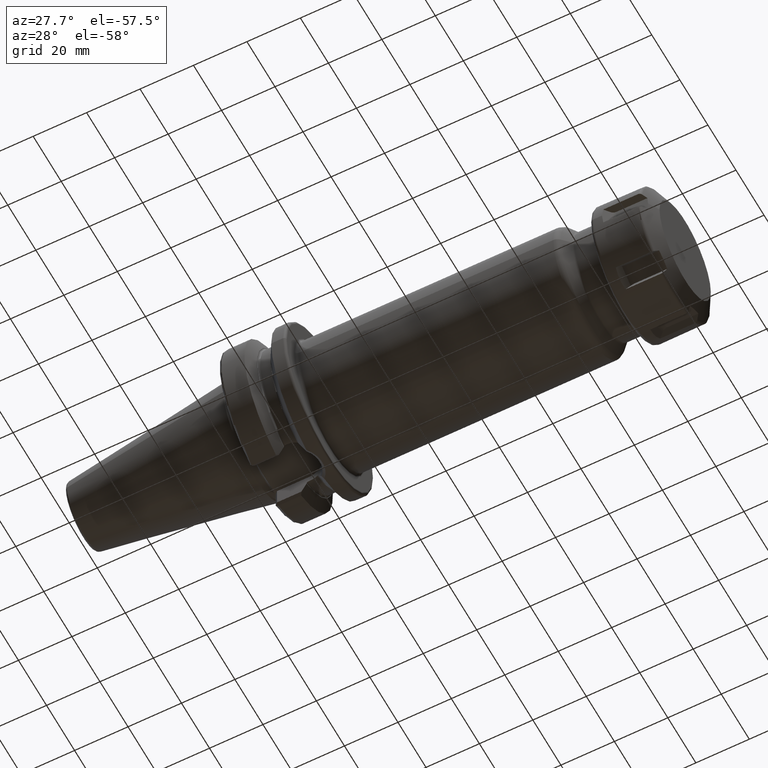
[diagram: clean part render]
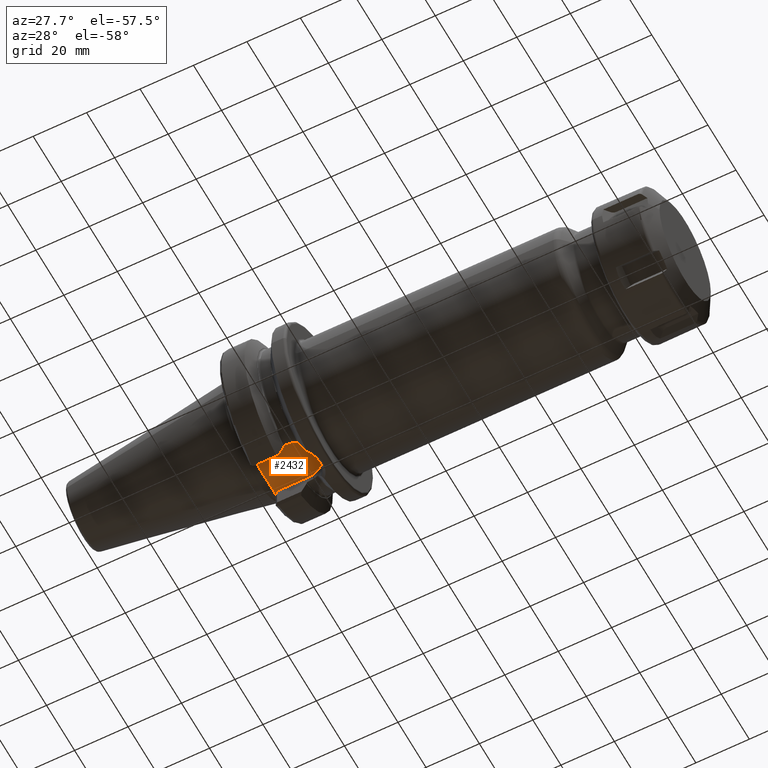
[diagram: same view with one face highlighted and labeled with its STEP entity id]
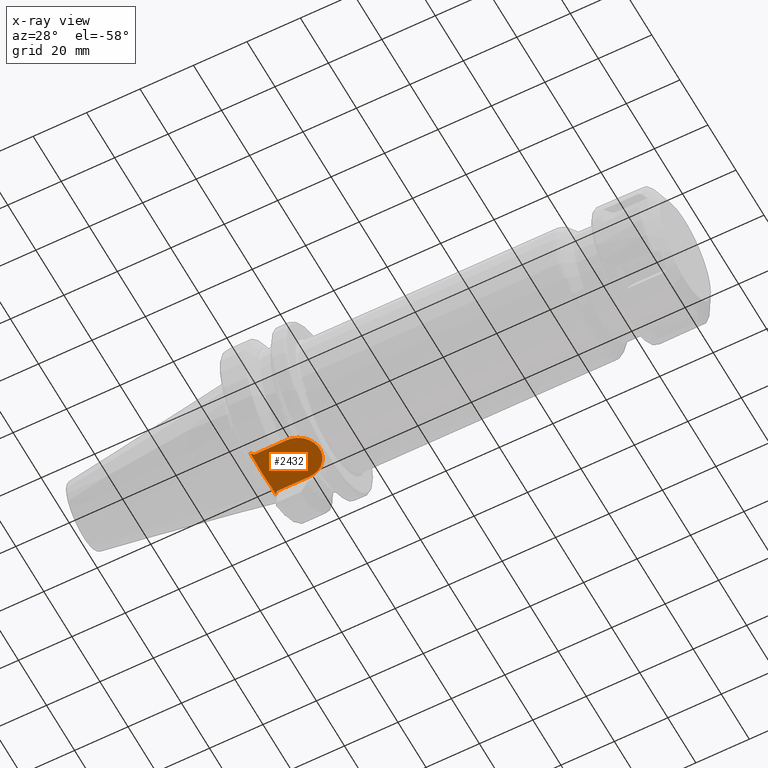
[diagram: x-ray of the same camera — body ghosted, the highlighted face saturated]
A machine part, auxiliary view. The second image highlights one B-rep face of the part: STEP entity #2432.
The next image is the same camera in x-ray: the body ghosted, the highlighted face saturated — about 0% of this face is hidden behind the body in this view.
In plain terms, the highlighted planar face has unit normal (0, 0, 1).
Its self-contained STEP definition (entity closure, byte-faithful):
#116=CARTESIAN_POINT('',(2.E0,4.388977671395E0,-2.245E1));
#117=CARTESIAN_POINT('',(2.E0,3.970864393606E0,-2.245E1));
#118=CARTESIAN_POINT('',(1.981114905491E0,3.134790252882E0,-2.245E1));
#119=CARTESIAN_POINT('',(1.935909306664E0,1.881114481695E0,-2.245E1));
#120=CARTESIAN_POINT('',(1.903922826087E0,6.271978198695E-1,-2.245E1));
#121=CARTESIAN_POINT('',(1.903921553157E0,-6.271174199701E-1,-2.245E1));
#122=CARTESIAN_POINT('',(1.935907277484E0,-1.881058975901E0,-2.245E1));
#123=CARTESIAN_POINT('',(1.981114329553E0,-3.134769380598E0,-2.245E1));
#124=CARTESIAN_POINT('',(2.E0,-3.970858027266E0,-2.245E1));
#125=CARTESIAN_POINT('',(2.E0,-4.388977671395E0,-2.245E1));
#147=DIRECTION('',(7.071067811865E-1,-7.071067811865E-1,0.E0));
#148=VECTOR('',#147,1.414213562373E0);
#149=CARTESIAN_POINT('',(2.E0,9.095E0,-2.245E1));
#150=LINE('',#149,#148);
#738=DIRECTION('',(-7.071067811865E-1,-7.071067811865E-1,0.E0));
#739=VECTOR('',#738,1.414213562373E0);
#740=CARTESIAN_POINT('',(3.E0,-8.095E0,-2.245E1));
#741=LINE('',#740,#739);
#742=DIRECTION('',(-1.E0,0.E0,0.E0));
#743=VECTOR('',#742,1.2155E1);
#744=CARTESIAN_POINT('',(1.5155E1,8.095E0,-2.245E1));
#745=LINE('',#744,#743);
#746=DIRECTION('',(0.E0,-1.E0,0.E0));
#747=VECTOR('',#746,4.706022328605E0);
#748=CARTESIAN_POINT('',(2.E0,9.095E0,-2.245E1));
#749=LINE('',#748,#747);
#750=DIRECTION('',(0.E0,-1.E0,0.E0));
#751=VECTOR('',#750,4.706022328605E0);
#752=CARTESIAN_POINT('',(2.E0,-4.388977671395E0,-2.245E1));
#753=LINE('',#752,#751);
#754=DIRECTION('',(1.E0,0.E0,0.E0));
#755=VECTOR('',#754,1.2155E1);
#756=CARTESIAN_POINT('',(3.E0,-8.095E0,-2.245E1));
#757=LINE('',#756,#755);
#758=CARTESIAN_POINT('',(1.5155E1,0.E0,-2.245E1));
#759=DIRECTION('',(0.E0,0.E0,1.E0));
#760=DIRECTION('',(0.E0,-1.E0,0.E0));
#761=AXIS2_PLACEMENT_3D('',#758,#759,#760);
#1372=CARTESIAN_POINT('',(1.5155E1,-8.095E0,-2.245E1));
#1373=CARTESIAN_POINT('',(1.5155E1,8.095E0,-2.245E1));
#1374=VERTEX_POINT('',#1372);
#1375=VERTEX_POINT('',#1373);
#1376=CARTESIAN_POINT('',(2.E0,4.388977671395E0,-2.245E1));
#1377=VERTEX_POINT('',#1376);
#1378=CARTESIAN_POINT('',(2.E0,-4.388977671395E0,-2.245E1));
#1379=VERTEX_POINT('',#1378);
#1425=CARTESIAN_POINT('',(3.E0,8.095E0,-2.245E1));
#1427=VERTEX_POINT('',#1425);
#1429=CARTESIAN_POINT('',(2.E0,9.095E0,-2.245E1));
#1431=VERTEX_POINT('',#1429);
#1435=CARTESIAN_POINT('',(2.E0,-9.095E0,-2.245E1));
#1436=VERTEX_POINT('',#1435);
#1437=CARTESIAN_POINT('',(3.E0,-8.095E0,-2.245E1));
#1439=VERTEX_POINT('',#1437);
#2417=CARTESIAN_POINT('',(0.E0,0.E0,-2.245E1));
#2418=DIRECTION('',(0.E0,0.E0,1.E0));
#2419=DIRECTION('',(1.E0,0.E0,0.E0));
#2420=AXIS2_PLACEMENT_3D('',#2417,#2418,#2419);
#2421=PLANE('',#2420);
#2422=ORIENTED_EDGE('',*,*,#1709,.T.);
#2423=ORIENTED_EDGE('',*,*,#1690,.F.);
#2424=ORIENTED_EDGE('',*,*,#1654,.T.);
#2425=ORIENTED_EDGE('',*,*,#1633,.T.);
#2426=ORIENTED_EDGE('',*,*,#1666,.T.);
#2427=ORIENTED_EDGE('',*,*,#2412,.F.);
#2428=ORIENTED_EDGE('',*,*,#1864,.T.);
#2429=ORIENTED_EDGE('',*,*,#1958,.T.);
#2430=EDGE_LOOP('',(#2422,#2423,#2424,#2425,#2426,#2427,#2428,#2429));
#2431=FACE_OUTER_BOUND('',#2430,.F.);
#2432=ADVANCED_FACE('',(#2431),#2421,.F.);
#126=B_SPLINE_CURVE_WITH_KNOTS('',3,(#116,#117,#118,#119,#120,#121,#122,#123,
#124,#125),.UNSPECIFIED.,.F.,.F.,(4,1,1,1,1,1,1,4),(0.E0,1.428571428571E-1,
2.857142857143E-1,4.285714285714E-1,5.714285714286E-1,7.142857142857E-1,
8.571428571429E-1,1.E0),.UNSPECIFIED.);
#762=CIRCLE('',#761,8.095E0);
#1633=EDGE_CURVE('',#1377,#1379,#126,.T.);
#1654=EDGE_CURVE('',#1431,#1377,#749,.T.);
#1666=EDGE_CURVE('',#1379,#1436,#753,.T.);
#1690=EDGE_CURVE('',#1431,#1427,#150,.T.);
#1709=EDGE_CURVE('',#1375,#1427,#745,.T.);
#1864=EDGE_CURVE('',#1439,#1374,#757,.T.);
#1958=EDGE_CURVE('',#1374,#1375,#762,.T.);
#2412=EDGE_CURVE('',#1439,#1436,#741,.T.);